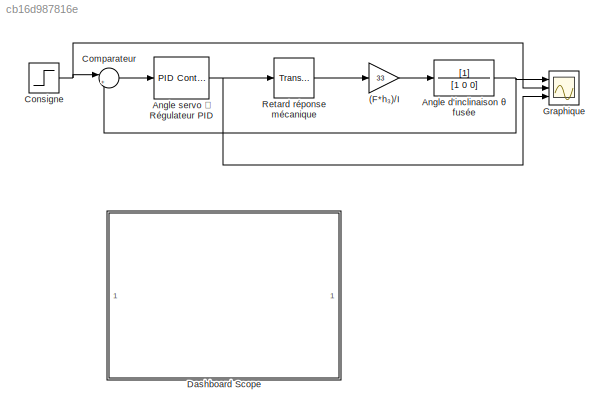
MODEL slx_cb16d987816e
KIND model
CONFIG AbsTol = auto
CONFIG EnableMultiTasking = off
CONFIG FixedStep = auto
CONFIG MaxStep = auto
CONFIG MinStep = auto
CONFIG RelTol = 1e-3
CONFIG SampleTimeConstraint = Unconstrained
CONFIG Solver = VariableStepAuto
CONFIG SolverName = VariableStepAuto
CONFIG StartTime = 0.0
CONFIG StopTime = 3
BLOCK [Gain] (F*h₃)//I 
  Gain = 33
  OutDataTypeStr = Inherit: Inherit via internal rule
  ParamDataTypeStr = Inherit: Inherit via internal rule
  SaturateOnIntegerOverflow = off
BLOCK [TransferFcn] Angle d'inclinaison θ fusée
  Denominator = [1 0 0]
BLOCK [Reference] Angle servo ⍺ Régulateur PID   REF=simulink/Continuous/PID Controller
  Ports = [1, 1]
  SourceBlock = simulink/Continuous/PID Controller
  SourceProductBaseCode = SL
  SourceProductName = Simulink
  SourceType = PID 1dof
BLOCK [Sum] Comparateur
  IconShape = round
  InputSameDT = off
  Inputs = |+-
  OutDataTypeStr = Inherit: Inherit via internal rule
  Ports = [2, 1]
  SaturateOnIntegerOverflow = off
BLOCK [Step] Consigne
  After = 0
  Before = 10
  SampleTime = 0
BLOCK [SubSystem] Dashboard Scope
  DialogController = hmiCreateDDGDialog
  IsWebBlock = on
  MaskHideContents = on
  Ports = []
  RequestExecContextInheritance = off
  Variant = off
BLOCK [Scope] Graphique
  NumInputPorts = 3
  Ports = [3]
  ScopeSpecificationString = Simulink.scopes.TimeScopeBlockCfg('CurrentConfiguration', extmgr.ConfigurationSet(extmgr.Configuration('Core','General UI',true),extmgr.Configuration('Core','Source UI',true),extmgr.Configuration('Sources','WiredSimulink',true),extmgr.Configuration('Visuals','Time Domain',true,'SerializedDisplays',{struct('MinYLimReal','-6.66309','MaxYLimReal','5.18007','YLabelReal','','MinYLimMag','0.00000','MaxY...<+1440ch>
BLOCK [TransportDelay] Retard réponse mécanique
  DelayTime = 0.005
  Ports = [1, 1]
LINE (F*h₃)//I :1 -> Angle d'inclinaison θ fusée:1
NET Angle d'inclinaison θ fusée:1 -> Comparateur:2, Graphique:1
NET Angle servo ⍺ Régulateur PID :1 -> Graphique:3, Retard réponse mécanique:1
LINE Comparateur:1 -> Angle servo ⍺ Régulateur PID :1
NET Consigne:1 -> Comparateur:1, Graphique:2
LINE Retard réponse mécanique:1 -> (F*h₃)//I :1
note: NET lines group one-source signal fan-out (src -> all destinations, sorted); 1:1 wires keep LINE
